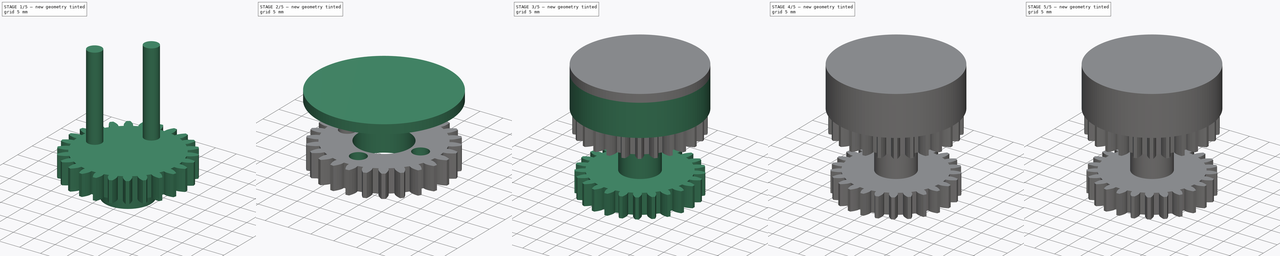
[diagram: build sequence overview — one tinted view per stage of 5, left to right]
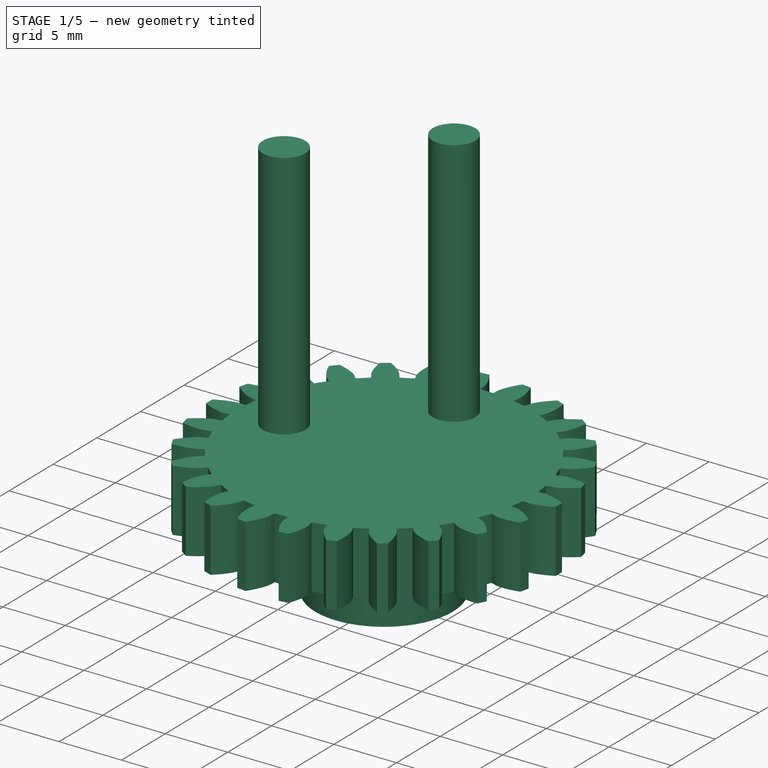
[diagram: stage 1 of 5 — iso view after this stage's code; geometry added in this stage tinted green]
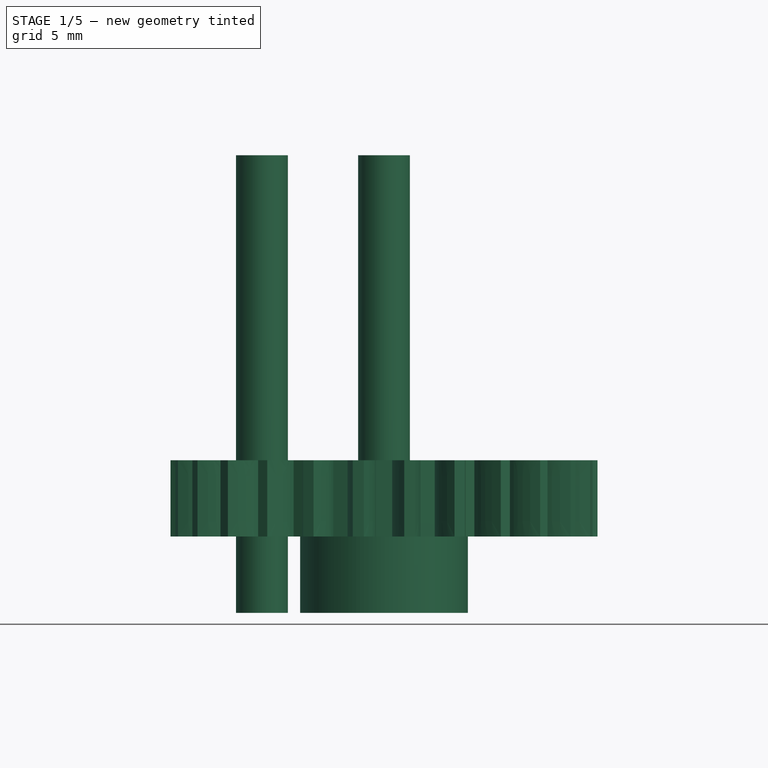
[diagram: stage 1 of 5 — front view after this stage's code; geometry added in this stage tinted green]
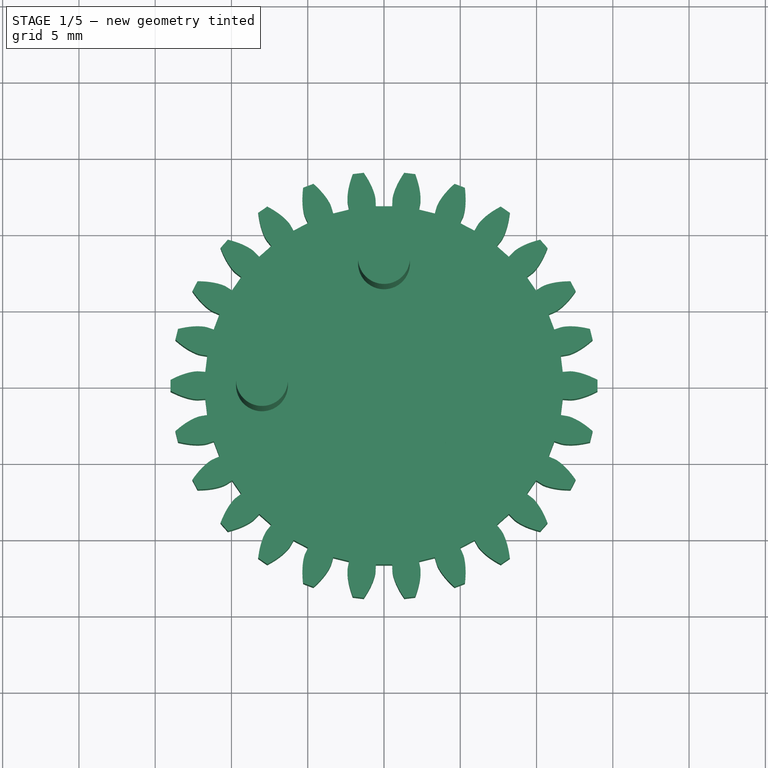
[diagram: stage 1 of 5 — top view after this stage's code; geometry added in this stage tinted green]
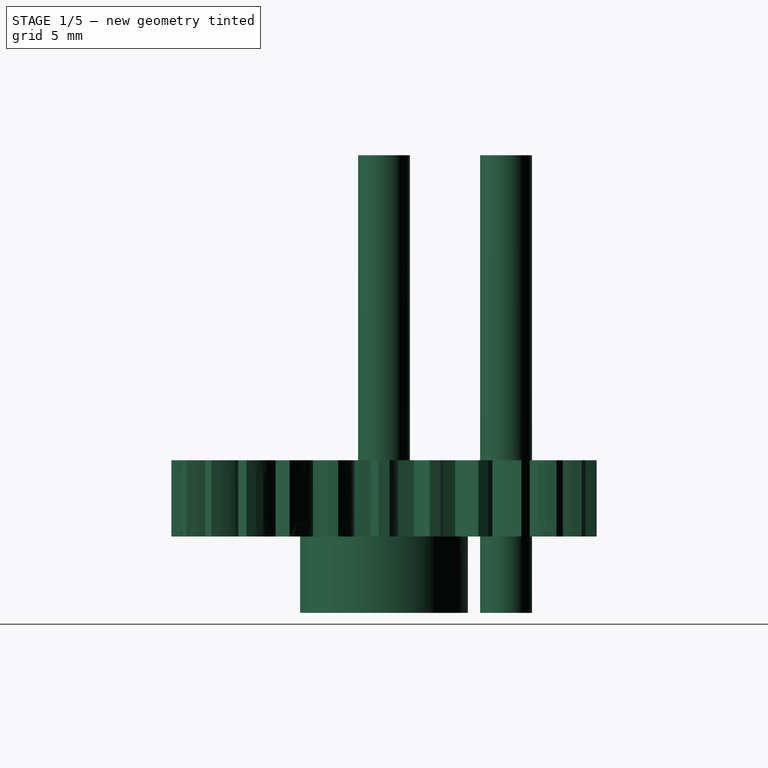
[diagram: stage 1 of 5 — right view after this stage's code; geometry added in this stage tinted green]
FCSTD DOCUMENT  (FreeCAD 0.19R24291 (Git))
Label: planetary-gear1
License: All rights reserved
LicenseURL: http://en.wikipedia.org/wiki/All_rights_reserved
objects: Part::Extrusion×14, Part::FeaturePython×9, Part::Cut×9, Sketcher::SketchObject×8, Part::Feature×6, Part::MultiFuse×5
note: 51 computed .brp shape members not serialized (recipe doc carries the construction recipe); baked Part::Feature solids carry a one-line shape summary decoded from their .brp

FEATURE [Part::FeaturePython] involutegear  label="Sun"  # WARN: FeaturePython — macro-defined, semantics opaque (R4)
  AttacherType = Attacher::AttachEngine3D
  Placement = pos=(0,0,0) rot=(0,0,1;0.383972rad)
  backlash = 0
  beta = 0
  clearance = 0.25
  da = 10
  df = 5.5
  double_helix = false
  dw = 8
  head = 0
  height = 7
  module = 1
  numpoints = 6
  pressure_angle = 20
  properties_from_tool = false
  reversed_backlash = false
  shift = 0
  simple = false
  teeth = 8
  transverse_pitch = 3.14159
  undercut = false
  version = 0.0.3
FEATURE [Sketcher::SketchObject] Sketch005
  FullyConstrained = true
  MapMode = 5
  Placement = pos=(0,0,0) rot=(0.981627,0.190809,0;3.14159rad)
  Support = -> [involutegear]
  sketch-geometry (2):
    g0: Circle CenterX=0 CenterY=0 CenterZ=0 NormalX=0 NormalY=0 NormalZ=1 AngleXU=0 Radius=5.5
    g1: Circle CenterX=0 CenterY=0 CenterZ=0 NormalX=0 NormalY=0 NormalZ=1 AngleXU=0 Radius=11
  constraints (4):
    c: Coincident(g0,g-1)
    c: Coincident(g1,g0)
    c: Radius(g0) = 5.5
    c: Radius(g1) = 11
FEATURE [Part::Extrusion] Extrude005
  Base = -> Sketch005
  Dir = (0,0,-1)
  DirMode = 2
  FaceMakerClass = Part::FaceMakerBullseye
  LengthFwd = 5
  LengthRev = 0
  Solid = true
  Symmetric = false
FEATURE [Part::Extrusion] Extrude008
  Base = -> Face002
  Dir = (0,0,1)
  DirMode = 0
  FaceMakerClass = Part::FaceMakerBullseye
  LengthFwd = 30
  LengthRev = 0
  Solid = false
  Symmetric = true
FEATURE [Part::Extrusion] Extrude009
  Base = -> Face001
  Dir = (0,0,1)
  DirMode = 0
  FaceMakerClass = Part::FaceMakerBullseye
  LengthFwd = 30
  LengthRev = 0
  Solid = false
  Symmetric = true
FEATURE [Part::FeaturePython] involutegear013  # WARN: FeaturePython — macro-defined, semantics opaque (R4)
  AttacherType = Attacher::AttachEngine3D
  Placement = pos=(0,0,-5) rot=(0,0,1;0rad)
  backlash = 0
  beta = 0
  clearance = 0.25
  da = 28
  df = 23.5
  double_helix = false
  dw = 26
  head = 0
  height = 5
  module = 1
  numpoints = 6
  pressure_angle = 20
  properties_from_tool = false
  reversed_backlash = false
  shift = 0
  simple = false
  teeth = 26
  transverse_pitch = 3.14159
  undercut = false
  version = 0.0.3
FEATURE [Part::MultiFuse] Fusion002
  Shapes = -> [Extrude005,involutegear013]
FEATURE [Part::Feature] Face005
  shape: bbox 16.38 x 14.13 x 2e-07 mm, 1 faces, 0 solids (baked)
FEATURE [Part::Extrusion] Extrude012
  Base = -> Face005
  Dir = (0,0,1)
  DirMode = 0
  FaceMakerClass = Part::FaceMakerBullseye
  LengthFwd = 10
  LengthRev = 0
  Solid = false
  Symmetric = true
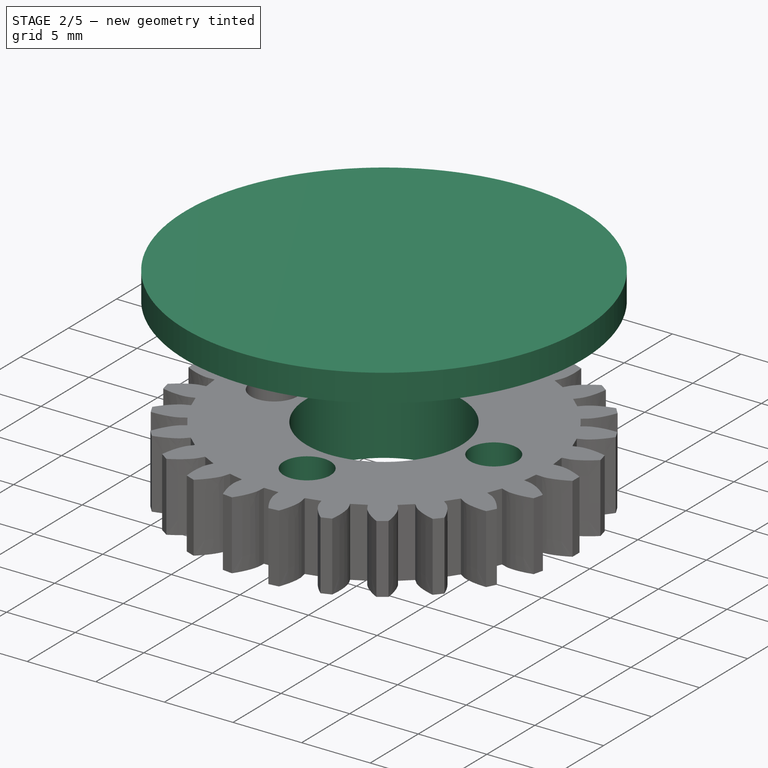
[diagram: stage 2 of 5 — iso view after this stage's code; geometry added in this stage tinted green]
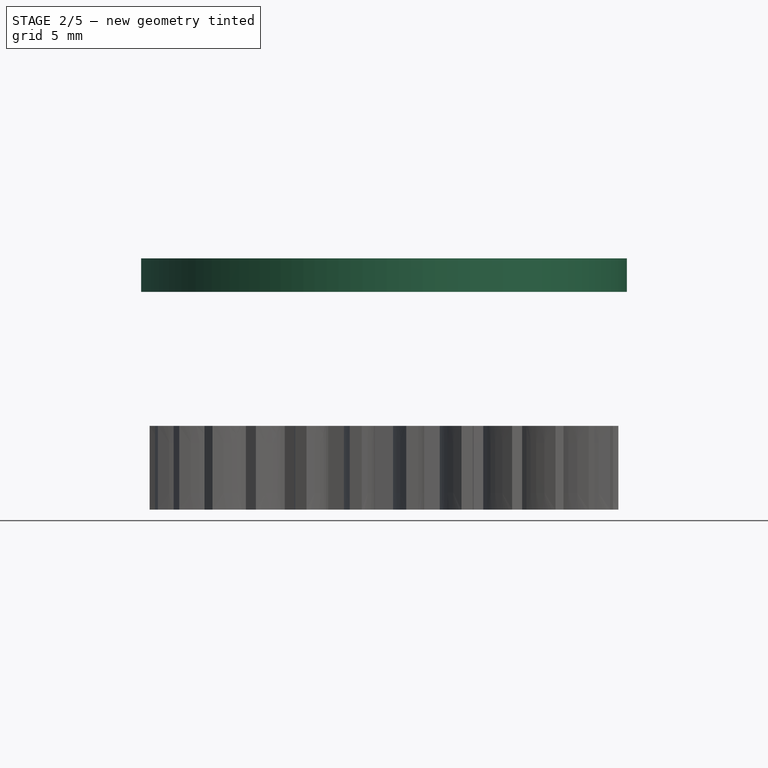
[diagram: stage 2 of 5 — front view after this stage's code; geometry added in this stage tinted green]
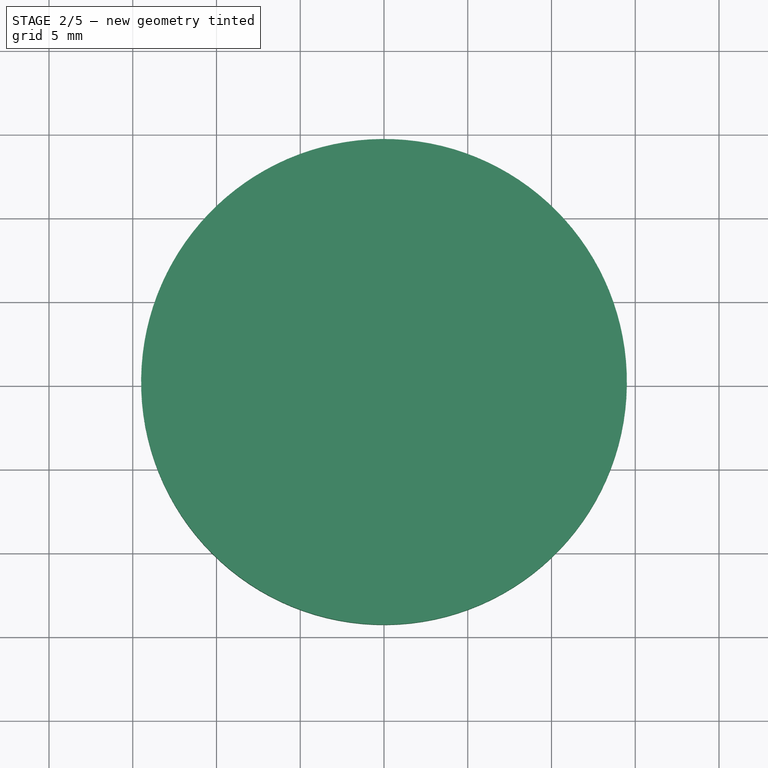
[diagram: stage 2 of 5 — top view after this stage's code; geometry added in this stage tinted green]
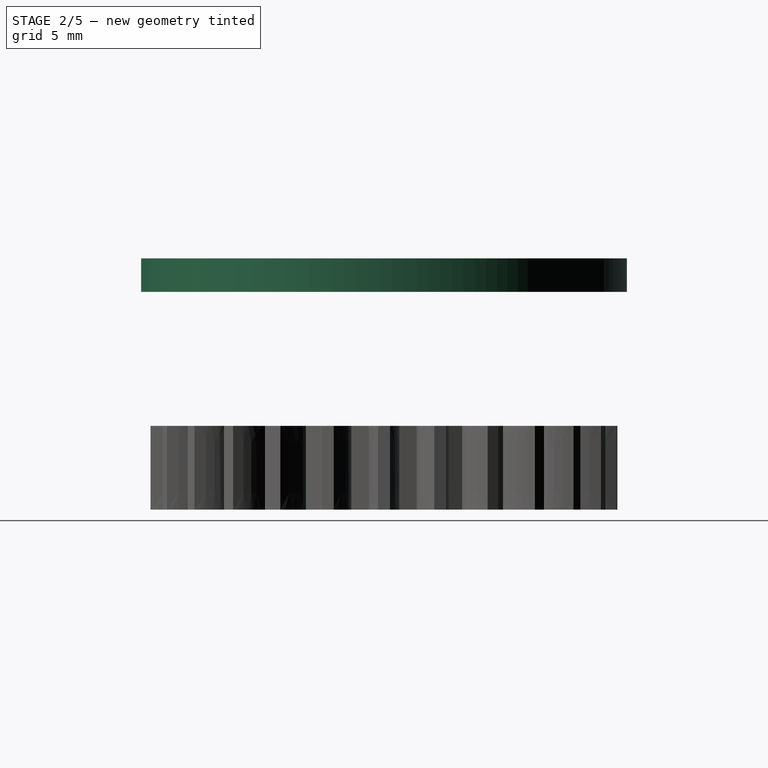
[diagram: stage 2 of 5 — right view after this stage's code; geometry added in this stage tinted green]
FEATURE [Part::Feature] Face
  shape: bbox 5.278 x 5.28 x 2e-07 mm, 1 faces, 0 solids (baked)
FEATURE [Part::Extrusion] Extrude006
  Base = -> Face
  Dir = (0,0,1)
  DirMode = 0
  FaceMakerClass = Part::FaceMakerBullseye
  LengthFwd = 30
  LengthRev = -20
  Solid = false
  Symmetric = true
FEATURE [Part::Feature] Face001
  shape: bbox 5.278 x 5.28 x 2e-07 mm, 1 faces, 0 solids (baked)
FEATURE [Part::Feature] Face002
  shape: bbox 3.92 x 3.686 x 2e-07 mm, 1 faces, 0 solids (baked)
FEATURE [Part::Feature] Face003
  shape: bbox 4.193 x 4.07 x 2e-07 mm, 1 faces, 0 solids (baked)
FEATURE [Part::Extrusion] Extrude007
  Base = -> Face003
  Dir = (0,0,1)
  DirMode = 0
  FaceMakerClass = Part::FaceMakerBullseye
  LengthFwd = 30
  LengthRev = 18
  Solid = false
  Symmetric = true
FEATURE [Part::MultiFuse] Fusion
  Shapes = -> [Extrude006,Extrude009,Extrude008,Extrude007]
FEATURE [Part::Cut] Cut006  label="Carriage"
  Base = -> Fusion002
  Tool = -> Fusion
FEATURE [Part::Feature] Face004
  shape: bbox 47.14 x 44.81 x 2e-07 mm, 1 faces, 0 solids (baked)
FEATURE [Part::Extrusion] Extrude011
  Base = -> Face004
  Dir = (0,0,1)
  DirMode = 0
  FaceMakerClass = Part::FaceMakerBullseye
  LengthFwd = 2
  LengthRev = 0
  Placement = pos=(0,0,3) rot=(0,0,1;0rad)
  Solid = false
  Symmetric = false
FEATURE [Part::Cut] Cut007  label="Carriage001"
  Base = -> Cut006
  Tool = -> Extrude012
FEATURE [Sketcher::SketchObject] Sketch010
  FullyConstrained = true
  MapMode = 5
  Placement = pos=(0,0,-5) rot=(1,0,0;3.14159rad)
  Support = -> [Cut007]
  sketch-geometry (1):
    g0: Circle CenterX=0 CenterY=0 CenterZ=0 NormalX=0 NormalY=0 NormalZ=1 AngleXU=0 Radius=5.65
  constraints (2):
    c: Coincident(g0,g-1)
    c: Radius(g0) = 5.65
FEATURE [Part::Extrusion] Extrude013
  Base = -> Sketch010
  Dir = (0,0,-1)
  DirMode = 0
  FaceMakerClass = Part::FaceMakerBullseye
  LengthFwd = -5
  LengthRev = 0
  Solid = true
  Symmetric = false
FEATURE [Part::Cut] Cut008  label="Carriage002"
  Base = -> Cut007
  Tool = -> Extrude013
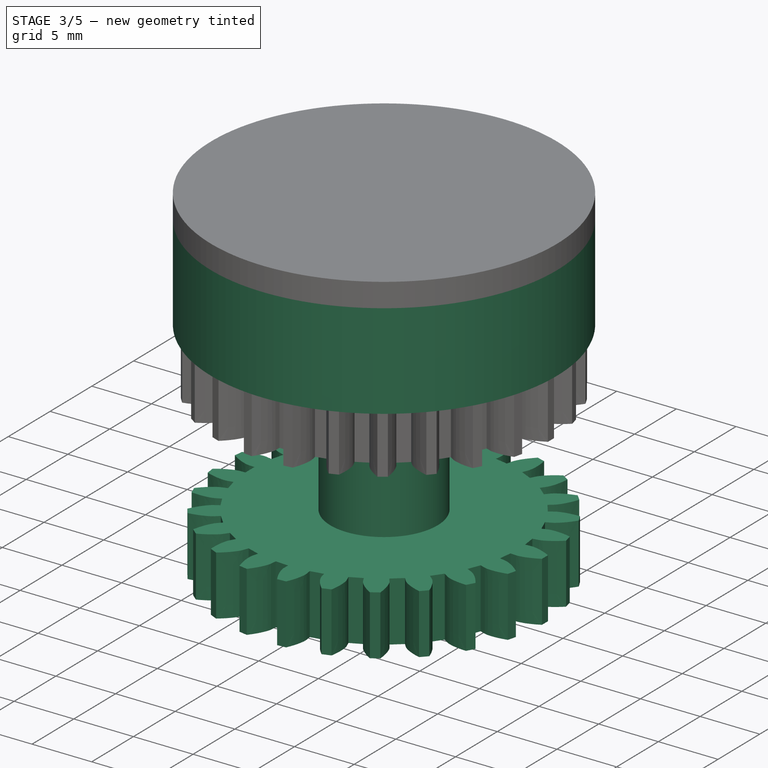
[diagram: stage 3 of 5 — iso view after this stage's code; geometry added in this stage tinted green]
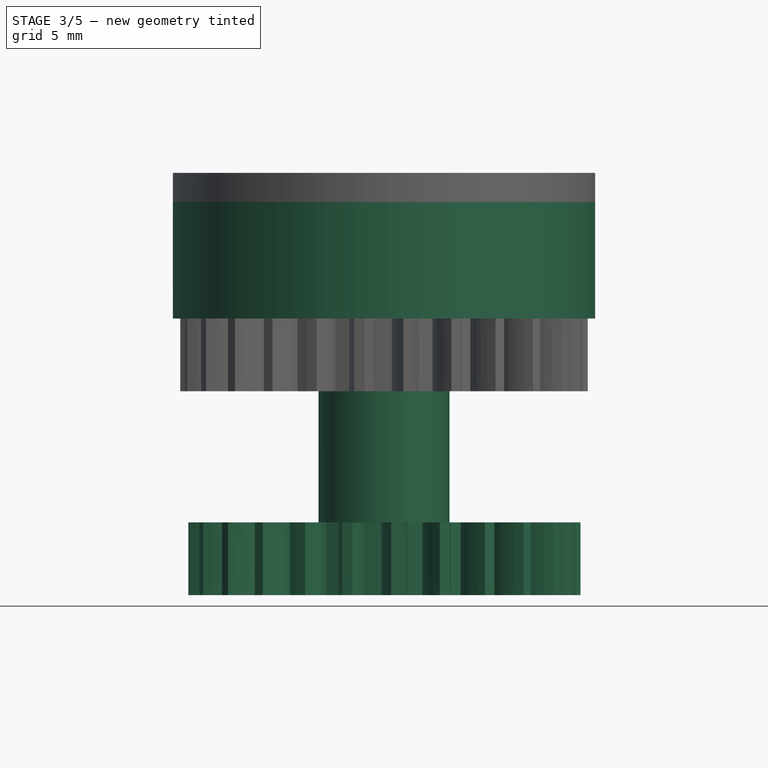
[diagram: stage 3 of 5 — front view after this stage's code; geometry added in this stage tinted green]
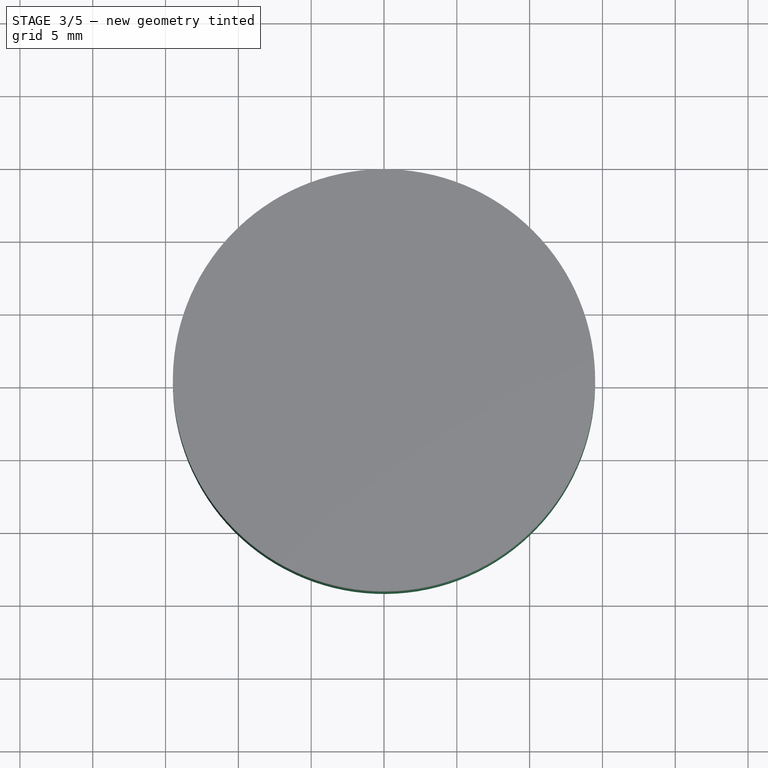
[diagram: stage 3 of 5 — top view after this stage's code; geometry added in this stage tinted green]
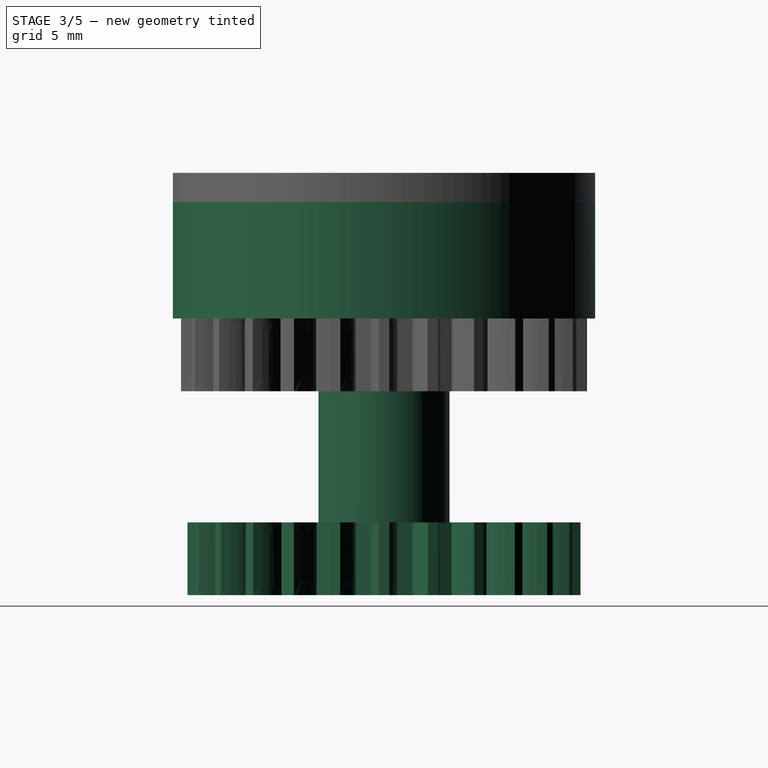
[diagram: stage 3 of 5 — right view after this stage's code; geometry added in this stage tinted green]
FEATURE [Part::FeaturePython] involutegear001  # WARN: FeaturePython — macro-defined, semantics opaque (R4)
  AttacherType = Attacher::AttachEngine3D
  backlash = 0
  beta = 0
  clearance = 0.25
  da = 26
  df = 21.5
  double_helix = false
  dw = 24
  head = 0
  height = 10
  module = 1
  numpoints = 6
  pressure_angle = 20
  properties_from_tool = false
  reversed_backlash = false
  shift = 0
  simple = false
  teeth = 24
  transverse_pitch = 3.14159
  undercut = false
  version = 0.0.3
FEATURE [Sketcher::SketchObject] Sketch
  FullyConstrained = true
  MapMode = 2
  Placement = pos=(0,0,0) rot=(0,0,1;0.383972rad)
  Support = -> [involutegear]
  sketch-geometry (1):
    g0: Circle CenterX=0 CenterY=0 CenterZ=0 NormalX=0 NormalY=0 NormalZ=1 AngleXU=0 Radius=14.5
  constraints (2):
    c: Coincident(g0,g-1)
    c: Radius(g0) = 14.5
FEATURE [Part::Extrusion] Extrude
  Base = -> Sketch
  Dir = (0,0,1)
  DirMode = 0
  FaceMakerClass = Part::FaceMakerBullseye
  LengthFwd = 8
  LengthRev = 0
  Solid = true
  Symmetric = false
FEATURE [Part::Cut] Cut  label="Ring"
  Base = -> Extrude
  Tool = -> involutegear001
FEATURE [Sketcher::SketchObject] Sketch008
  FullyConstrained = true
  MapMode = 5
  Placement = pos=(0,0,0) rot=(0.981627,0.190809,0;3.14159rad)
  Support = -> [involutegear]
  sketch-geometry (1):
    g0: Circle CenterX=0 CenterY=0 CenterZ=0 NormalX=0 NormalY=0 NormalZ=1 AngleXU=0 Radius=4.5
  constraints (2):
    c: Coincident(g0,g-1)
    c: Radius(g0) = 4.5
FEATURE [Part::Extrusion] Extrude010
  Base = -> Sketch008
  Dir = (0,0,-1)
  DirMode = 0
  FaceMakerClass = Part::FaceMakerBullseye
  LengthFwd = 13
  LengthRev = 5
  Solid = true
  Symmetric = false
FEATURE [Part::FeaturePython] involutegear012  # WARN: FeaturePython — macro-defined, semantics opaque (R4)
  AttacherType = Attacher::AttachEngine3D
  Placement = pos=(0,0,-14) rot=(0,0,1;0rad)
  backlash = 0
  beta = 0
  clearance = 0.25
  da = 27
  df = 22.5
  double_helix = false
  dw = 25
  head = 0
  height = 5
  module = 1
  numpoints = 6
  pressure_angle = 20
  properties_from_tool = false
  reversed_backlash = false
  shift = 0
  simple = false
  teeth = 25
  transverse_pitch = 3.14159
  undercut = false
  version = 0.0.3
FEATURE [Part::MultiFuse] Fusion001
  Placement = pos=(0,0,-5) rot=(0,0,1;0rad)
  Shapes = -> [involutegear012,Extrude010]
FEATURE [Part::MultiFuse] Fusion004  label="Ring001"
  Shapes = -> [Cut,Extrude011]
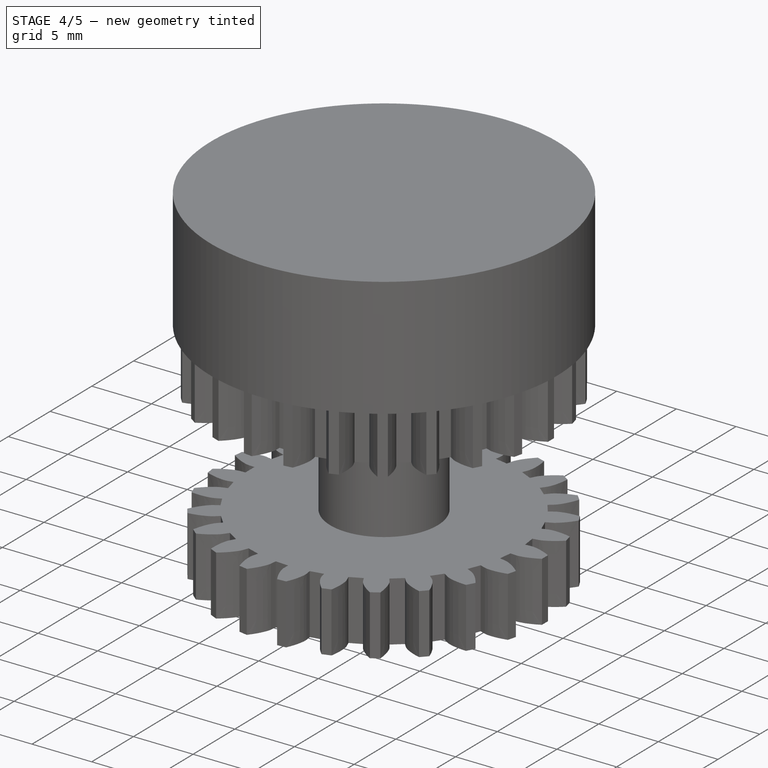
[diagram: stage 4 of 5 — iso view after this stage's code; geometry added in this stage tinted green]
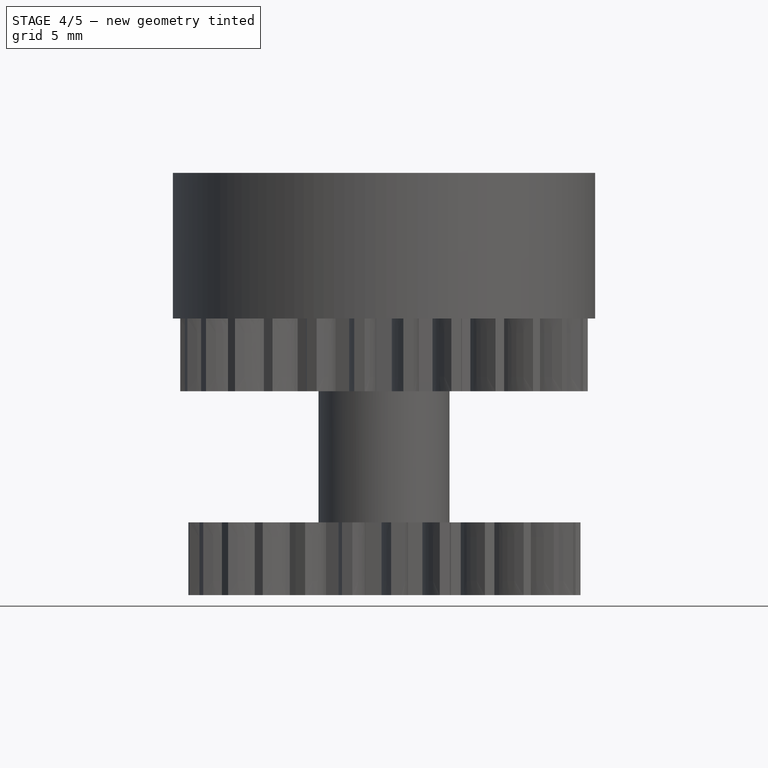
[diagram: stage 4 of 5 — front view after this stage's code; geometry added in this stage tinted green]
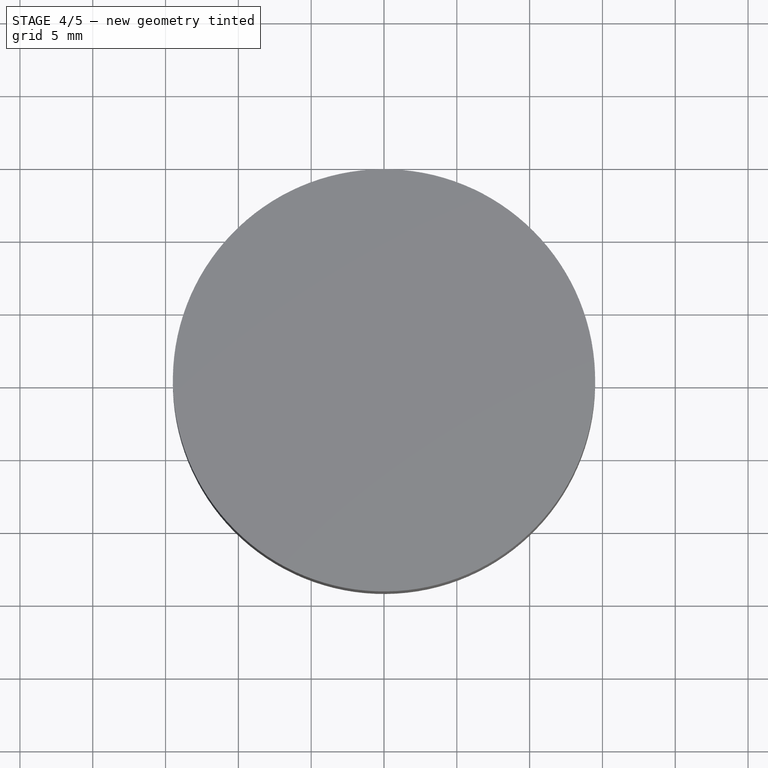
[diagram: stage 4 of 5 — top view after this stage's code; geometry added in this stage tinted green]
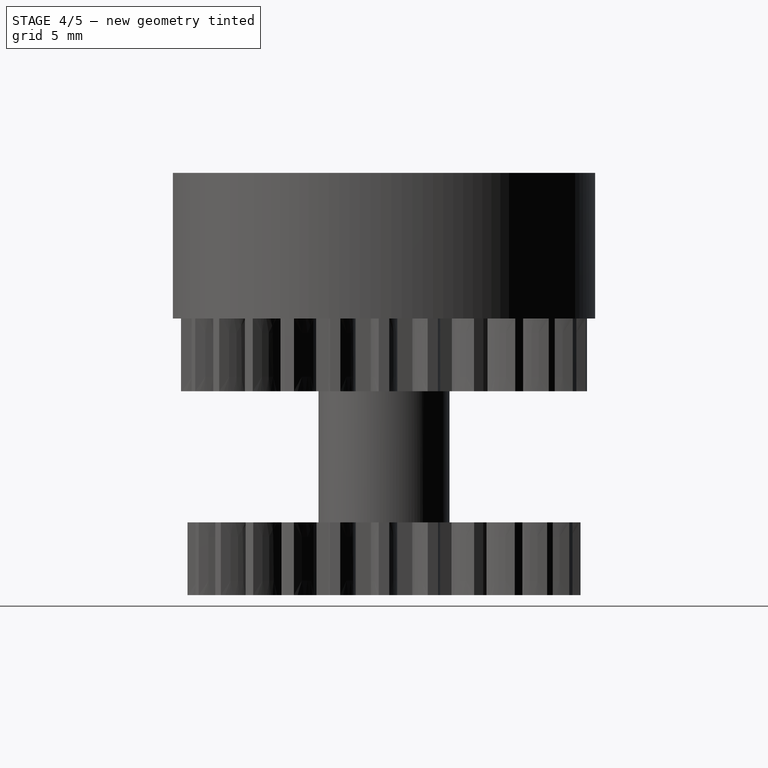
[diagram: stage 4 of 5 — right view after this stage's code; geometry added in this stage tinted green]
FEATURE [Part::FeaturePython] involutegear009  # WARN: FeaturePython — macro-defined, semantics opaque (R4)
  AttacherType = Attacher::AttachEngine3D
  Placement = pos=(0,-8,0) rot=(0,0,1;0rad)
  backlash = 0
  beta = 0
  clearance = 0.25
  da = 10
  df = 5.5
  double_helix = false
  dw = 8
  head = 0
  height = 5
  module = 1
  numpoints = 6
  pressure_angle = 20
  properties_from_tool = false
  reversed_backlash = false
  shift = 0
  simple = false
  teeth = 8
  transverse_pitch = 3.14159
  undercut = false
  version = 0.0.3
FEATURE [Sketcher::SketchObject] Sketch003
  ExternalGeometry = -> [involutegear009]
  FullyConstrained = false
  MapMode = 5
  Placement = pos=(0,8,0) rot=(1,0,0;3.14159rad)
  sketch-geometry (2):
    g0: Circle CenterX=-1.46e-14 CenterY=16 CenterZ=0 NormalX=0 NormalY=0 NormalZ=1 AngleXU=0 Radius=1.7
    g1: GeomPoint X=-1.46e-14 Y=16 Z=0
  constraints (2):
    c: Coincident(g0,g1)
    c: Radius(g0) = 1.7
FEATURE [Part::Extrusion] Extrude003
  Base = -> Sketch003
  Dir = (0,0,-1)
  DirMode = 2
  FaceMakerClass = Part::FaceMakerBullseye
  LengthFwd = -10
  LengthRev = 0
  Solid = true
  Symmetric = false
FEATURE [Part::Cut] Cut003  label="Planet3"
  Base = -> involutegear009
  Placement = pos=(8,8,0) rot=(0,0,1;0rad)
  Tool = -> Extrude003
FEATURE [Part::FeaturePython] involutegear011  # WARN: FeaturePython — macro-defined, semantics opaque (R4)
  AttacherType = Attacher::AttachEngine3D
  Placement = pos=(0,-8,0) rot=(0,0,1;0rad)
  backlash = 0
  beta = 0
  clearance = 0.25
  da = 10
  df = 5.5
  double_helix = false
  dw = 8
  head = 0
  height = 5
  module = 1
  numpoints = 6
  pressure_angle = 20
  properties_from_tool = false
  reversed_backlash = false
  shift = 0
  simple = false
  teeth = 8
  transverse_pitch = 3.14159
  undercut = false
  version = 0.0.3
FEATURE [Sketcher::SketchObject] Sketch004
  ExternalGeometry = -> [involutegear011]
  FullyConstrained = false
  MapMode = 5
  Placement = pos=(0,8,0) rot=(1,0,0;3.14159rad)
  sketch-geometry (2):
    g0: Circle CenterX=-1.46e-14 CenterY=16 CenterZ=0 NormalX=0 NormalY=0 NormalZ=1 AngleXU=0 Radius=1.7
    g1: GeomPoint X=-1.46e-14 Y=16 Z=0
  constraints (2):
    c: Coincident(g0,g1)
    c: Radius(g0) = 1.7
FEATURE [Part::Extrusion] Extrude004
  Base = -> Sketch004
  Dir = (0,0,-1)
  DirMode = 2
  FaceMakerClass = Part::FaceMakerBullseye
  LengthFwd = -10
  LengthRev = 0
  Solid = true
  Symmetric = false
FEATURE [Part::Cut] Cut004  label="Planet4"
  Base = -> involutegear011
  Placement = pos=(-8,8,0) rot=(0,0,1;0rad)
  Tool = -> Extrude004
FEATURE [Part::Cut] Cut005
  Base = -> Extrude005
  Tool = -> Fusion
FEATURE [Part::MultiFuse] Fusion003  label="Sun001"
  Shapes = -> [Fusion001,involutegear]
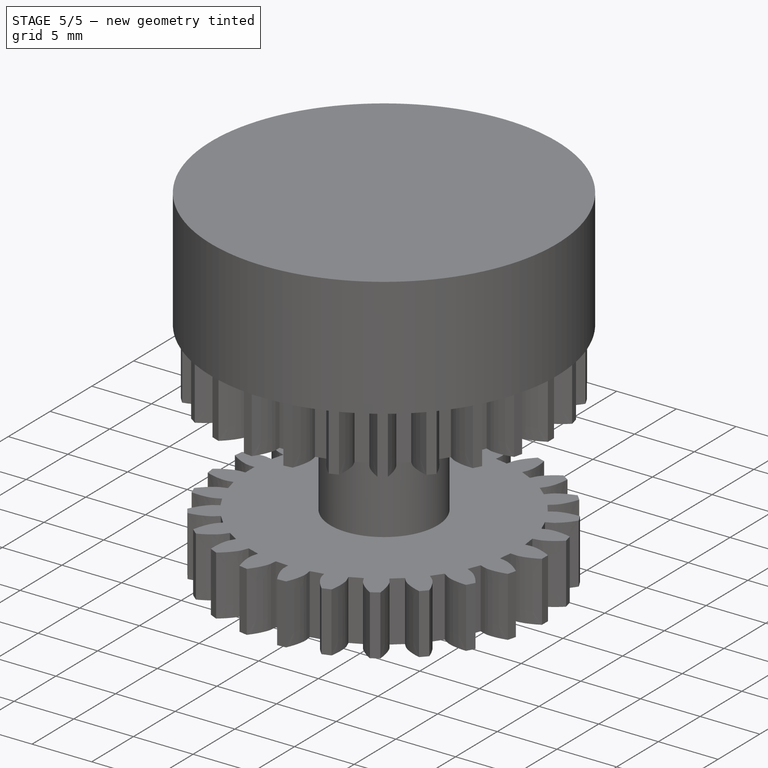
[diagram: stage 5 of 5 — iso view after this stage's code; geometry added in this stage tinted green]
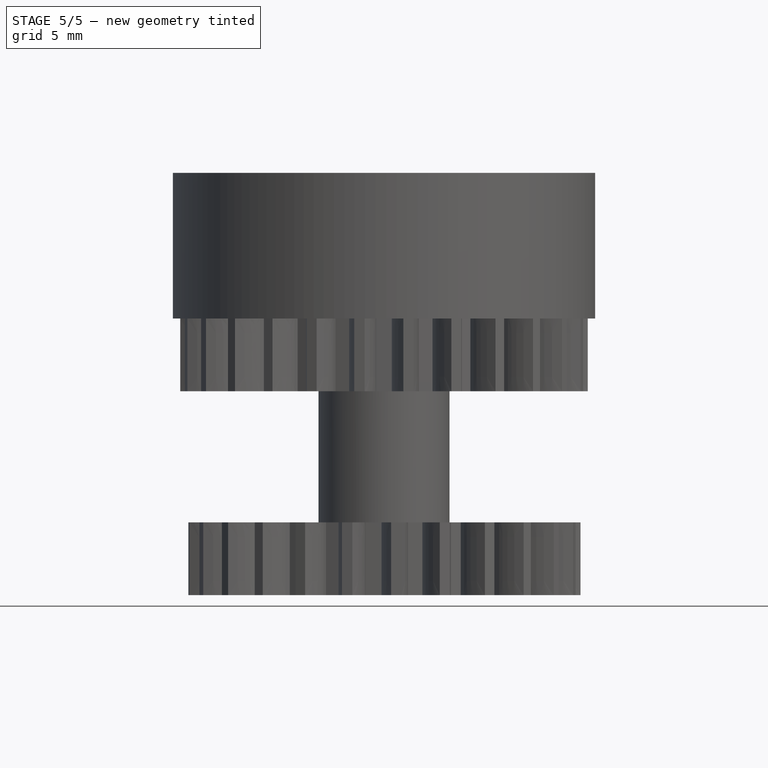
[diagram: stage 5 of 5 — front view after this stage's code; geometry added in this stage tinted green]
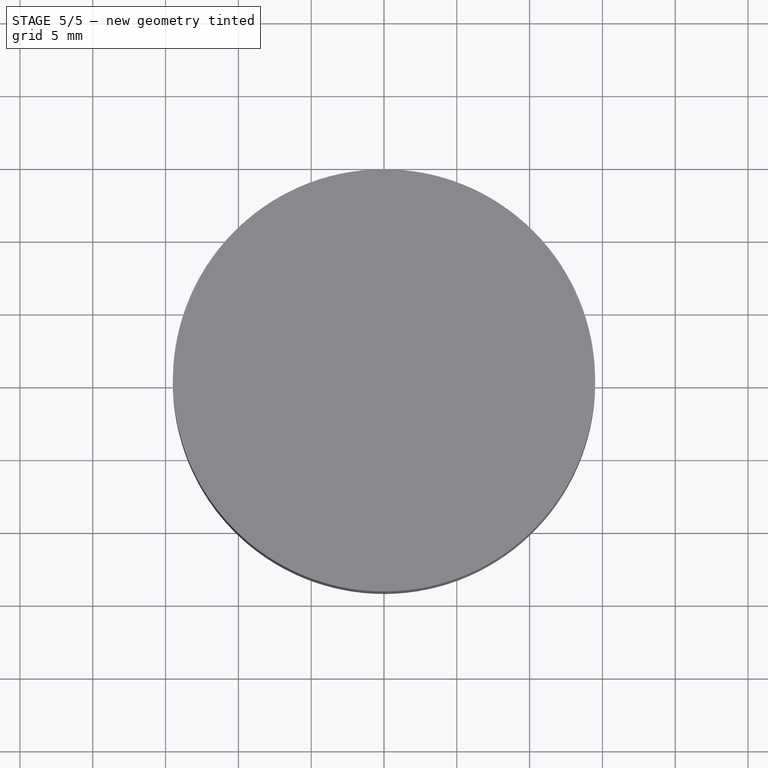
[diagram: stage 5 of 5 — top view after this stage's code; geometry added in this stage tinted green]
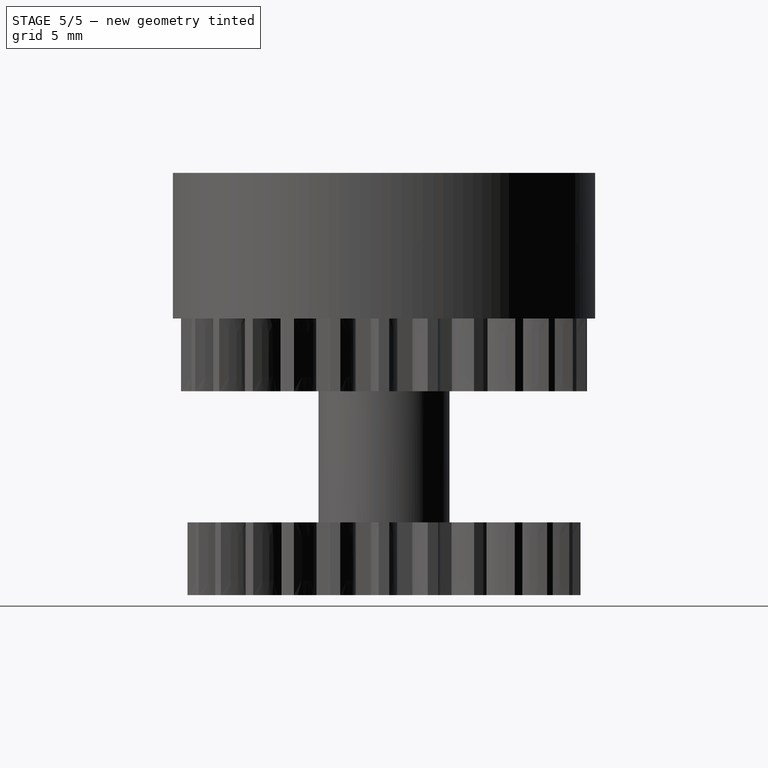
[diagram: stage 5 of 5 — right view after this stage's code; geometry added in this stage tinted green]
FEATURE [Part::FeaturePython] involutegear004  # WARN: FeaturePython — macro-defined, semantics opaque (R4)
  AttacherType = Attacher::AttachEngine3D
  Placement = pos=(0,8,0) rot=(0,0,1;0rad)
  backlash = 0
  beta = 0
  clearance = 0.25
  da = 10
  df = 5.5
  double_helix = false
  dw = 8
  head = 0
  height = 5
  module = 1
  numpoints = 6
  pressure_angle = 20
  properties_from_tool = false
  reversed_backlash = false
  shift = 0
  simple = false
  teeth = 8
  transverse_pitch = 3.14159
  undercut = false
  version = 0.0.3
FEATURE [Part::FeaturePython] involutegear005  # WARN: FeaturePython — macro-defined, semantics opaque (R4)
  AttacherType = Attacher::AttachEngine3D
  Placement = pos=(0,-8,0) rot=(0,0,1;0rad)
  backlash = 0
  beta = 0
  clearance = 0.25
  da = 10
  df = 5.5
  double_helix = false
  dw = 8
  head = 0
  height = 5
  module = 1
  numpoints = 6
  pressure_angle = 20
  properties_from_tool = false
  reversed_backlash = false
  shift = 0
  simple = false
  teeth = 8
  transverse_pitch = 3.14159
  undercut = false
  version = 0.0.3
FEATURE [Sketcher::SketchObject] Sketch001
  ExternalGeometry = -> [involutegear005]
  FullyConstrained = false
  MapMode = 5
  Placement = pos=(0,8,0) rot=(1,0,0;3.14159rad)
  Support = -> [involutegear004]
  sketch-geometry (2):
    g0: Circle CenterX=-1.46e-14 CenterY=16 CenterZ=0 NormalX=0 NormalY=0 NormalZ=1 AngleXU=0 Radius=1.7
    g1: GeomPoint X=-1.46e-14 Y=16 Z=0
  constraints (2):
    c: Coincident(g0,g1)
    c: Radius(g0) = 1.7
FEATURE [Part::Extrusion] Extrude001
  Base = -> Sketch001
  Dir = (0,0,-1)
  DirMode = 2
  FaceMakerClass = Part::FaceMakerBullseye
  LengthFwd = -10
  LengthRev = 0
  Solid = true
  Symmetric = false
FEATURE [Part::Cut] Cut001  label="Planet1"
  Base = -> involutegear005
  Tool = -> Extrude001
FEATURE [Part::FeaturePython] involutegear007  # WARN: FeaturePython — macro-defined, semantics opaque (R4)
  AttacherType = Attacher::AttachEngine3D
  Placement = pos=(0,-8,0) rot=(0,0,1;0rad)
  backlash = 0
  beta = 0
  clearance = 0.25
  da = 10
  df = 5.5
  double_helix = false
  dw = 8
  head = 0
  height = 5
  module = 1
  numpoints = 6
  pressure_angle = 20
  properties_from_tool = false
  reversed_backlash = false
  shift = 0
  simple = false
  teeth = 8
  transverse_pitch = 3.14159
  undercut = false
  version = 0.0.3
FEATURE [Sketcher::SketchObject] Sketch002
  ExternalGeometry = -> [involutegear007]
  FullyConstrained = false
  MapMode = 5
  Placement = pos=(0,8,0) rot=(1,0,0;3.14159rad)
  sketch-geometry (2):
    g0: Circle CenterX=-1.46e-14 CenterY=16 CenterZ=0 NormalX=0 NormalY=0 NormalZ=1 AngleXU=0 Radius=1.7
    g1: GeomPoint X=-1.46e-14 Y=16 Z=0
  constraints (2):
    c: Coincident(g0,g1)
    c: Radius(g0) = 1.7
FEATURE [Part::Extrusion] Extrude002
  Base = -> Sketch002
  Dir = (0,0,-1)
  DirMode = 2
  FaceMakerClass = Part::FaceMakerBullseye
  LengthFwd = -10
  LengthRev = 0
  Solid = true
  Symmetric = false
FEATURE [Part::Cut] Cut002  label="Planet2"
  Base = -> involutegear007
  Placement = pos=(0,16,0) rot=(0,0,1;0rad)
  Tool = -> Extrude002
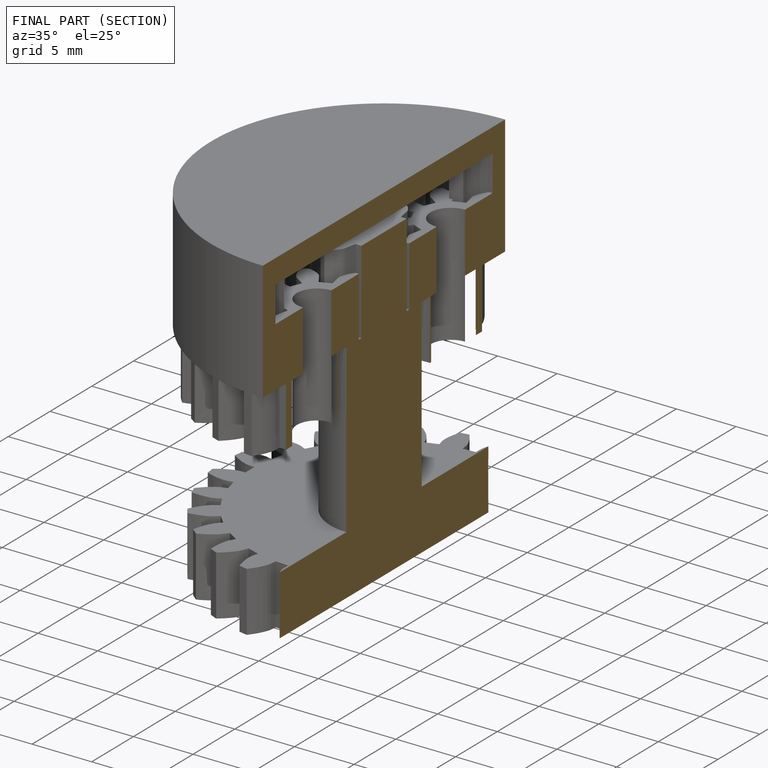
[diagram: finished part — half-section view (interior)]
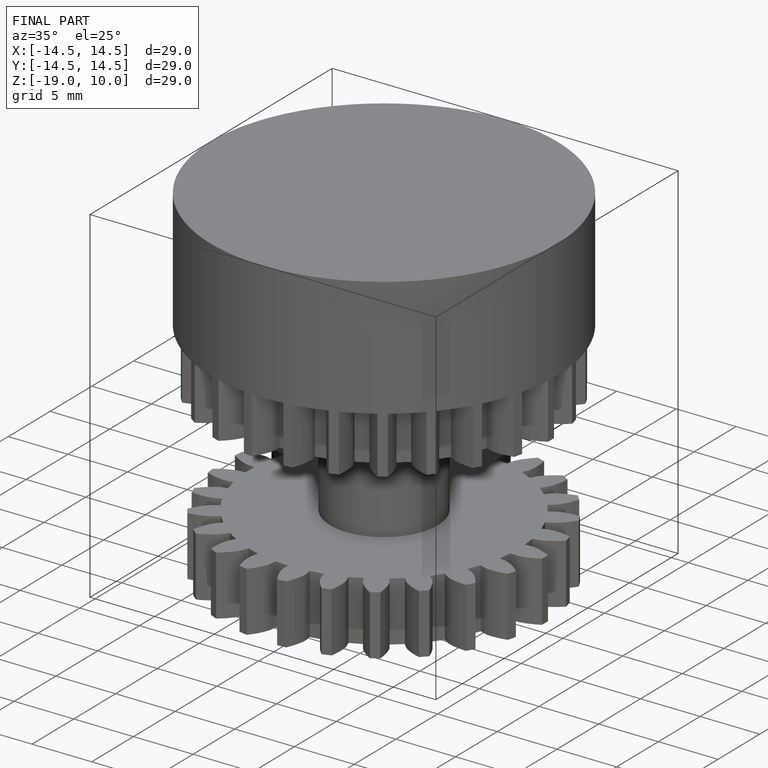
[diagram: finished part — iso view with bounding-box wireframe]
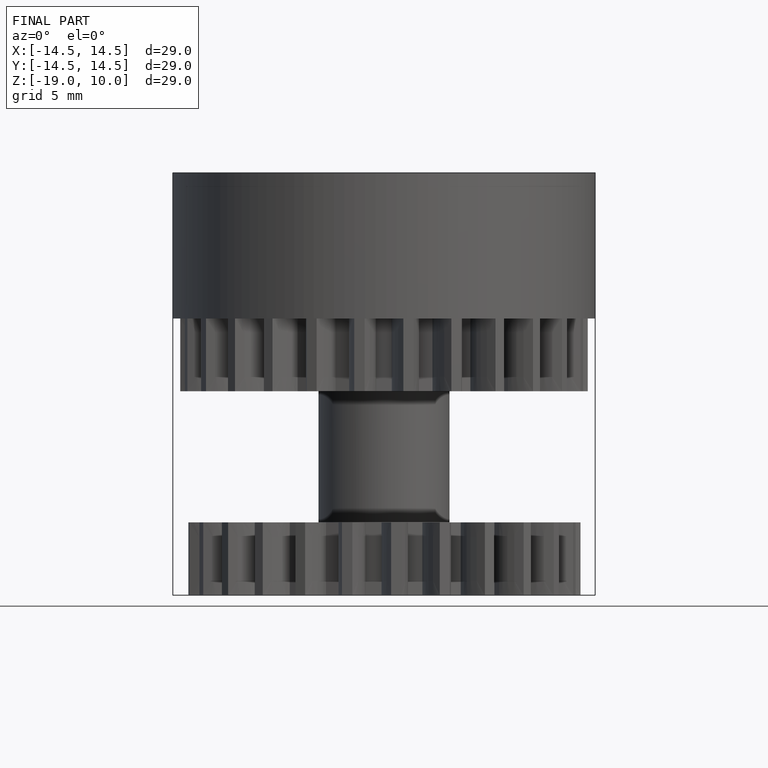
[diagram: finished part — front view with bounding-box wireframe]
